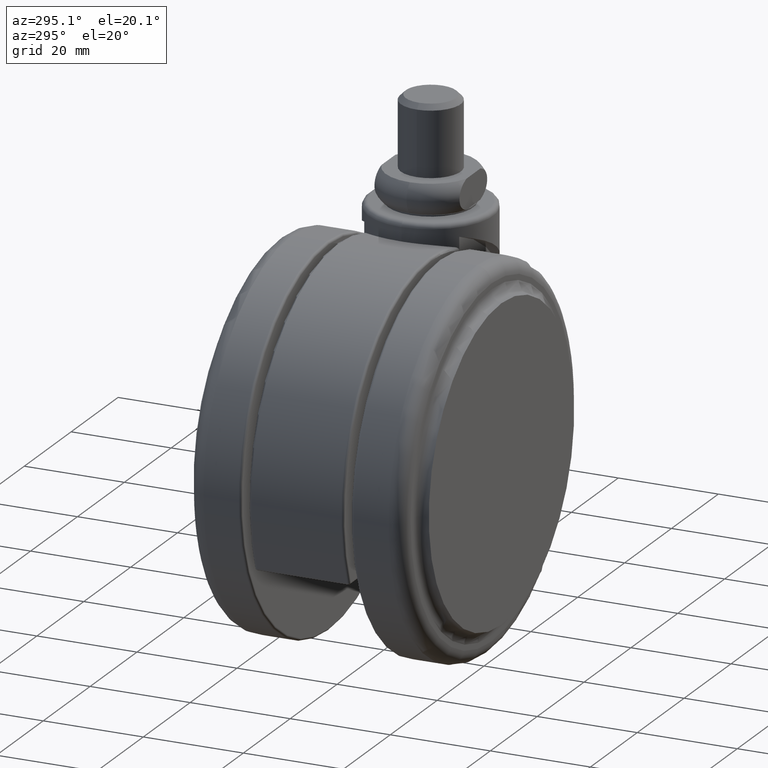
[diagram: clean part render]
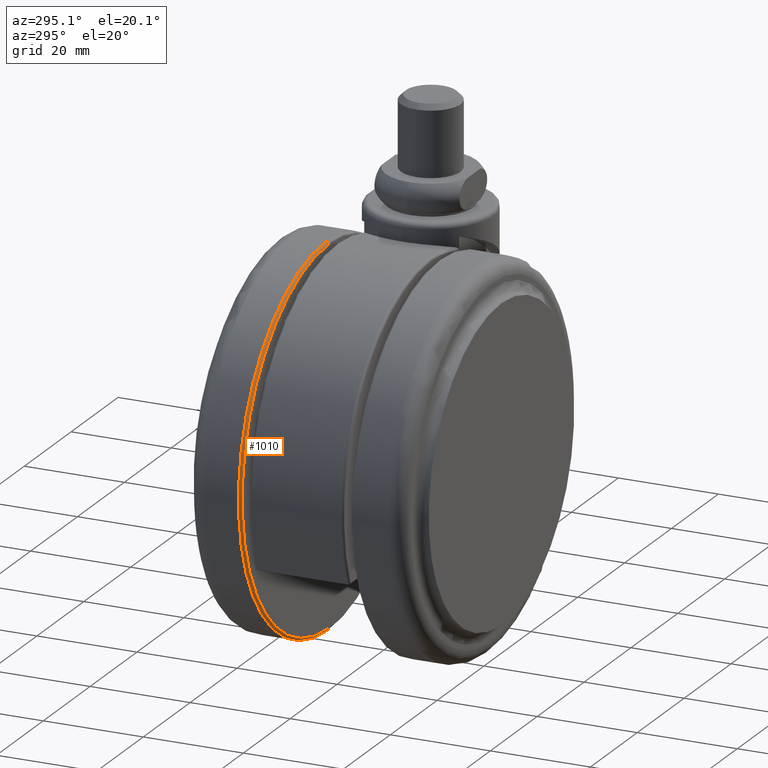
[diagram: same view with one face highlighted and labeled with its STEP entity id]
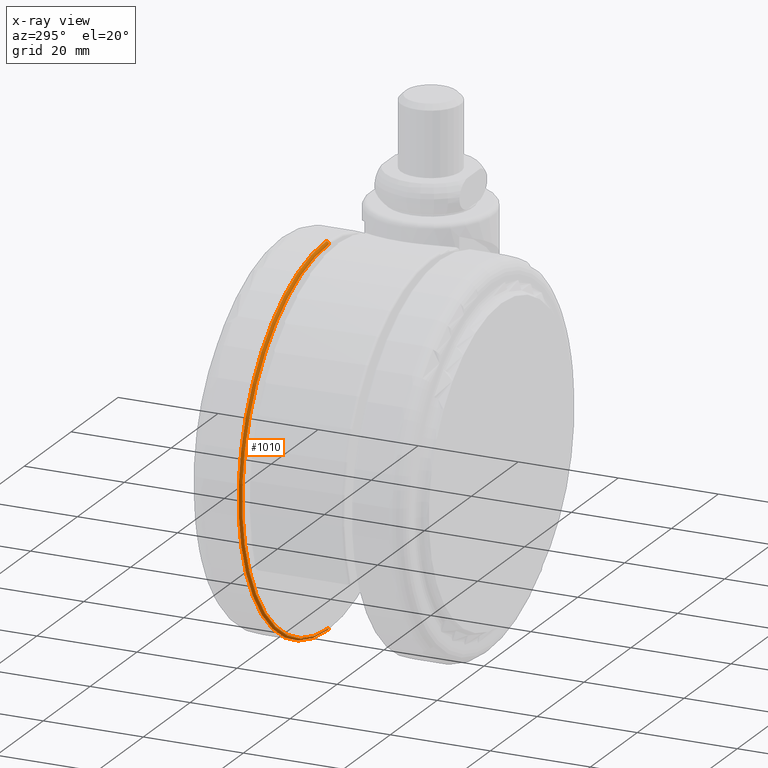
[diagram: x-ray of the same camera — body ghosted, the highlighted face saturated]
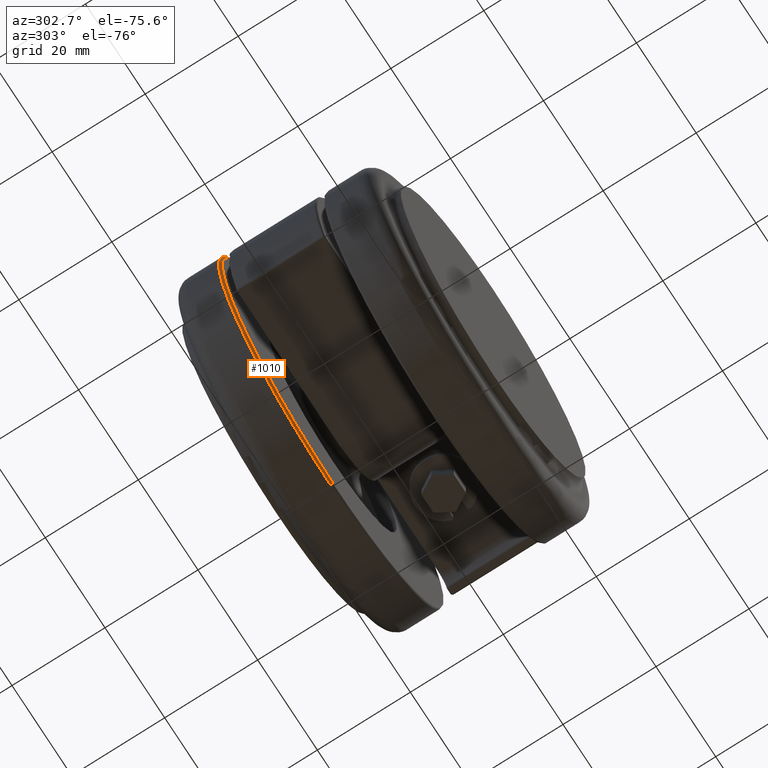
[diagram: same view with one face highlighted and labeled with its STEP entity id]
A machine part, auxiliary view. The second image highlights one B-rep face of the part: STEP entity #1010.
The next image is the same camera in x-ray: the body ghosted, the highlighted face saturated — about 0% of this face is hidden behind the body in this view.
A second angle (auxiliary view) of the same face is appended — the face is thin or edge-on in the first view.
In plain terms, the highlighted toroidal blend (fillet) surface has major radius 37 mm and minor (blend) radius 0.5 mm.
Its self-contained STEP definition (entity closure, byte-faithful):
#142 = EDGE_CURVE ( 'NONE', #1980, #2057, #3188, .T. ) ;
#220 = DIRECTION ( 'NONE',  ( -1.582413479254075000E-015, -1.000000000000000000, 0.0000000000000000000 ) ) ;
#486 = TOROIDAL_SURFACE ( 'NONE', #2348, 37.00000000000000000, 0.5000000000000000000 ) ;
#655 = CARTESIAN_POINT ( 'NONE',  ( -19.99999999999998200, 11.50000000000000000, -3.000000000000002700 ) ) ;
#1010 = ADVANCED_FACE ( 'NONE', ( #3601 ), #486, .T. ) ;
#1130 = DIRECTION ( 'NONE',  ( -1.582413479254075000E-015, -1.000000000000000000, 0.0000000000000000000 ) ) ;
#1191 = CIRCLE ( 'NONE', #3280, 0.5000000000000004400 ) ;
#1304 = AXIS2_PLACEMENT_3D ( 'NONE', #1508, #1409, #1367 ) ;
#1358 = VERTEX_POINT ( 'NONE', #1573 ) ;
#1367 = DIRECTION ( 'NONE',  ( 0.0000000000000000000, -1.000000000000000000, 0.0000000000000000000 ) ) ;
#1409 = DIRECTION ( 'NONE',  ( -1.000000000000000000, 1.582413479254075000E-015, -1.224646799147353200E-016 ) ) ;
#1414 = EDGE_CURVE ( 'NONE', #2526, #1358, #1191, .T. ) ;
#1508 = CARTESIAN_POINT ( 'NONE',  ( -20.00000000000000400, 11.50000000000000000, -3.500000000000003100 ) ) ;
#1573 = CARTESIAN_POINT ( 'NONE',  ( -20.00000000000000000, 11.50000000000000000, -78.00000000000000000 ) ) ;
#1681 = ORIENTED_EDGE ( 'NONE', *, *, #2422, .T. ) ;
#1783 = CIRCLE ( 'NONE', #1827, 37.00000000000000000 ) ;
#1827 = AXIS2_PLACEMENT_3D ( 'NONE', #2931, #1130, #3240 ) ;
#1937 = DIRECTION ( 'NONE',  ( 1.582413479254075000E-015, 1.000000000000000000, 0.0000000000000000000 ) ) ;
#1980 = VERTEX_POINT ( 'NONE', #3366 ) ;
#2024 = CARTESIAN_POINT ( 'NONE',  ( -20.00000000000000000, 11.50000000000000000, -40.50000000000000000 ) ) ;
#2057 = VERTEX_POINT ( 'NONE', #655 ) ;
#2104 = DIRECTION ( 'NONE',  ( 0.0000000000000000000, 1.000000000000000000, 0.0000000000000000000 ) ) ;
#2131 = DIRECTION ( 'NONE',  ( 1.000000000000000000, -1.582413479254075000E-015, 0.0000000000000000000 ) ) ;
#2200 = EDGE_LOOP ( 'NONE', ( #3712, #2317, #1681, #3379 ) ) ;
#2317 = ORIENTED_EDGE ( 'NONE', *, *, #142, .T. ) ;
#2338 = DIRECTION ( 'NONE',  ( 0.0000000000000000000, 0.0000000000000000000, -1.000000000000000000 ) ) ;
#2348 = AXIS2_PLACEMENT_3D ( 'NONE', #3262, #1937, #3314 ) ;
#2376 = CARTESIAN_POINT ( 'NONE',  ( -20.00000000000000000, 11.00000000000000000, -77.50000000000000000 ) ) ;
#2422 = EDGE_CURVE ( 'NONE', #2057, #1358, #3499, .T. ) ;
#2526 = VERTEX_POINT ( 'NONE', #2376 ) ;
#2931 = CARTESIAN_POINT ( 'NONE',  ( -20.00000000000000000, 11.00000000000000000, -40.50000000000000000 ) ) ;
#3160 = CARTESIAN_POINT ( 'NONE',  ( -20.00000000000000000, 11.50000000000000000, -77.50000000000000000 ) ) ;
#3188 = CIRCLE ( 'NONE', #1304, 0.5000000000000004400 ) ;
#3240 = DIRECTION ( 'NONE',  ( 0.0000000000000000000, 0.0000000000000000000, -1.000000000000000000 ) ) ;
#3262 = CARTESIAN_POINT ( 'NONE',  ( -20.00000000000000000, 11.50000000000000000, -40.50000000000000000 ) ) ;
#3280 = AXIS2_PLACEMENT_3D ( 'NONE', #3160, #2131, #2104 ) ;
#3314 = DIRECTION ( 'NONE',  ( 0.0000000000000000000, 0.0000000000000000000, -1.000000000000000000 ) ) ;
#3366 = CARTESIAN_POINT ( 'NONE',  ( -20.00000000000000400, 11.00000000000000000, -3.500000000000003100 ) ) ;
#3379 = ORIENTED_EDGE ( 'NONE', *, *, #1414, .F. ) ;
#3499 = CIRCLE ( 'NONE', #3550, 37.50000000000000000 ) ;
#3550 = AXIS2_PLACEMENT_3D ( 'NONE', #2024, #220, #2338 ) ;
#3601 = FACE_OUTER_BOUND ( 'NONE', #2200, .T. ) ;
#3712 = ORIENTED_EDGE ( 'NONE', *, *, #3852, .F. ) ;
#3852 = EDGE_CURVE ( 'NONE', #1980, #2526, #1783, .T. ) ;